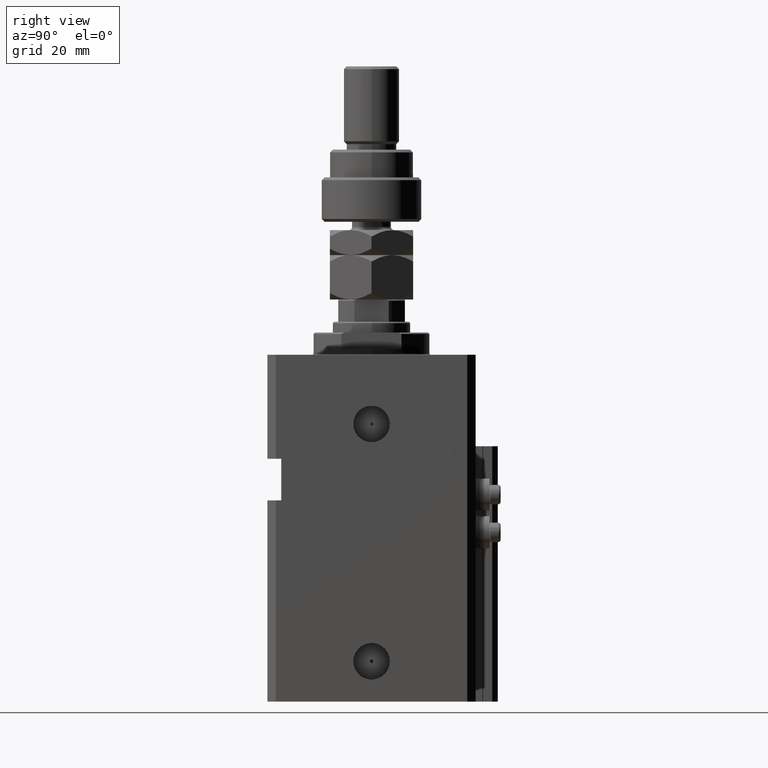
[diagram: clean part render]
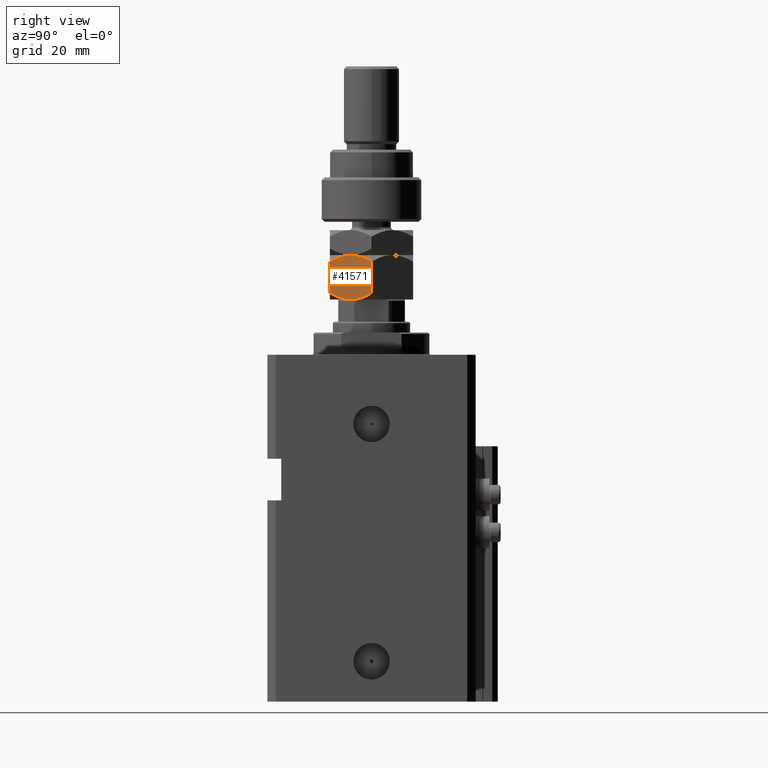
[diagram: same view with one face highlighted and labeled with its STEP entity id]
A machine part, right view. The second image highlights one B-rep face of the part: STEP entity #41571.
In plain terms, the highlighted planar face has unit normal (-0.866, 0.5, 0).
Its self-contained STEP definition (entity closure, byte-faithful):
#1382 = DIRECTION ( 'NONE',  ( -0.000000000000000000, -0.000000000000000000, -1.000000000000000000 ) ) ;
#2377 = CARTESIAN_POINT ( 'NONE',  ( 14.99999999999999645, 0.000000000000000000, 16.00000000000000000 ) ) ;
#2874 = CARTESIAN_POINT ( 'NONE',  ( 15.00000000000000000, 3.735400403320773055, 15.55737490054933403 ) ) ;
#3380 = CARTESIAN_POINT ( 'NONE',  ( 15.00000000000000178, -1.516896874073660584, 0.07181722323989220280 ) ) ;
#3632 = CARTESIAN_POINT ( 'NONE',  ( 15.00000000000000000, -0.7629267201675461463, 0.01468466084192619932 ) ) ;
#4727 = CARTESIAN_POINT ( 'NONE',  ( 15.00000000000000178, -5.891877557735398341, 14.89726549906047737 ) ) ;
#5242 = CARTESIAN_POINT ( 'NONE',  ( 15.00000000000000533, -1.527574731641585526, 16.00000000000001066 ) ) ;
#5587 = VERTEX_POINT ( 'NONE', #10029 ) ;
#5843 = EDGE_LOOP ( 'NONE', ( #10372, #18734, #17733, #15258, #15086, #16191 ) ) ;
#6780 = EDGE_CURVE ( 'NONE', #8073, #5587, #19856, .T. ) ;
#7012 = CARTESIAN_POINT ( 'NONE',  ( 15.00000000000000355, 0.7629267201675408172, 15.98531533915807934 ) ) ;
#7777 = CARTESIAN_POINT ( 'NONE',  ( 15.00000000000000000, 0.000000000000000000, 0.000000000000000000 ) ) ;
#8073 = VERTEX_POINT ( 'NONE', #29614 ) ;
#8439 = VERTEX_POINT ( 'NONE', #47627 ) ;
#8862 = CARTESIAN_POINT ( 'NONE',  ( 14.99999999999999645, 0.000000000000000000, 16.00000000000000000 ) ) ;
#8933 = CARTESIAN_POINT ( 'NONE',  ( 15.00000000000000000, 0.000000000000000000, 0.000000000000000000 ) ) ;
#10029 = CARTESIAN_POINT ( 'NONE',  ( 15.00000000000000000, -8.660254037844389075, 2.320508075688767047 ) ) ;
#10145 = CARTESIAN_POINT ( 'NONE',  ( 15.00000000000000000, 1.516896874073655477, 15.92818277676011007 ) ) ;
#10372 = ORIENTED_EDGE ( 'NONE', *, *, #28794, .F. ) ;
#10391 = CARTESIAN_POINT ( 'NONE',  ( 15.00000000000000000, 1.890862710942010638, 15.88574619416683831 ) ) ;
#10980 = EDGE_CURVE ( 'NONE', #23603, #8439, #40371, .T. ) ;
#11397 = CARTESIAN_POINT ( 'NONE',  ( 15.00000000000000000, 8.660254037844389075, 13.67949192431123784 ) ) ;
#11645 = CARTESIAN_POINT ( 'NONE',  ( 15.00000000000000178, -1.890862710942016411, 0.1142538058331598050 ) ) ;
#12483 = CARTESIAN_POINT ( 'NONE',  ( 15.00000000000000178, -7.987590979791838741, 14.01582345333751967 ) ) ;
#13320 = CARTESIAN_POINT ( 'NONE',  ( 15.00000000000000000, 7.987590979791842294, 1.984176546662486773 ) ) ;
#14258 = CARTESIAN_POINT ( 'NONE',  ( 15.00000000000000000, 3.004330627448758673, 15.71971113554880972 ) ) ;
#15086 = ORIENTED_EDGE ( 'NONE', *, *, #31621, .T. ) ;
#15203 = EDGE_CURVE ( 'NONE', #41717, #49380, #29106, .T. ) ;
#15258 = ORIENTED_EDGE ( 'NONE', *, *, #15203, .F. ) ;
#16191 = ORIENTED_EDGE ( 'NONE', *, *, #6780, .F. ) ;
#17395 = CARTESIAN_POINT ( 'NONE',  ( 15.00000000000000000, 8.660254037844389075, 16.00000000000000000 ) ) ;
#17733 = ORIENTED_EDGE ( 'NONE', *, *, #48934, .F. ) ;
#18370 = CARTESIAN_POINT ( 'NONE',  ( 15.00000000000000178, 5.890999289811421846, 14.89758491968458465 ) ) ;
#18734 = ORIENTED_EDGE ( 'NONE', *, *, #10980, .F. ) ;
#19403 = CARTESIAN_POINT ( 'NONE',  ( 15.00000000000000000, -8.660254037844389075, 16.00000000000000000 ) ) ;
#19856 = B_SPLINE_CURVE_WITH_KNOTS ( 'NONE', 3,
 ( #7777, #50335, #3632, #3380, #11645, #39499, #46978, #38467, #35097, #27367, #34594, #23760 ),
 .UNSPECIFIED., .F., .F.,
 ( 4, 2, 2, 2, 2, 4 ),
 ( 0.03291042869972461704, 0.03403908204310902852, 0.03516773538649344694, 0.03742504207326226989, 0.03968234876003109979, 0.04193965544679992274 ),
 .UNSPECIFIED. ) ;
#20439 = DIRECTION ( 'NONE',  ( 0.000000000000000000, 0.000000000000000000, 1.000000000000000000 ) ) ;
#21354 = B_SPLINE_CURVE_WITH_KNOTS ( 'NONE', 3,
 ( #2377, #42103, #7012, #10145, #10391, #14258, #2874, #30224, #18370, #22994, #50088, #49335 ),
 .UNSPECIFIED., .F., .F.,
 ( 4, 2, 2, 2, 2, 4 ),
 ( 0.03291042869972460316, 0.03403908204310901464, 0.03516773538649342612, 0.03742504207326225601, 0.03968234876003107897, 0.04193965544679990887 ),
 .UNSPECIFIED. ) ;
#22994 = CARTESIAN_POINT ( 'NONE',  ( 14.99999999999999645, 7.300329060372325429, 14.33030584635916860 ) ) ;
#23273 = PLANE ( 'NONE',  #25706 ) ;
#23603 = VERTEX_POINT ( 'NONE', #11397 ) ;
#23760 = CARTESIAN_POINT ( 'NONE',  ( 15.00000000000000000, -8.660254037844389075, 2.320508075688767047 ) ) ;
#24082 = CARTESIAN_POINT ( 'NONE',  ( 15.00000000000000000, -8.660254037844389075, 13.67949192431123961 ) ) ;
#24411 = CARTESIAN_POINT ( 'NONE',  ( 15.00000000000000000, 5.176035048062463950, 0.8528038385778482500 ) ) ;
#25706 = AXIS2_PLACEMENT_3D ( 'NONE', #19403, #31267, #20439 ) ;
#27367 = CARTESIAN_POINT ( 'NONE',  ( 15.00000000000000533, -7.300329060372333423, 1.669694153640836065 ) ) ;
#28173 = FACE_OUTER_BOUND ( 'NONE', #5843, .T. ) ;
#28528 = CARTESIAN_POINT ( 'NONE',  ( 15.00000000000000178, 1.527574731641579753, -2.310705880109730931E-15 ) ) ;
#28794 = EDGE_CURVE ( 'NONE', #8439, #8073, #31401, .T. ) ;
#28929 = LINE ( 'NONE', #44420, #41906 ) ;
#29106 = B_SPLINE_CURVE_WITH_KNOTS ( 'NONE', 3,
 ( #24082, #12483, #48057, #4727, #32322, #43943, #5242, #8862 ),
 .UNSPECIFIED., .F., .F.,
 ( 4, 2, 2, 4 ),
 ( 0.02387628527307377943, 0.02613482112973648450, 0.02839335698639919303, 0.03291042869972460316 ),
 .UNSPECIFIED. ) ;
#29192 = CARTESIAN_POINT ( 'NONE',  ( 15.00000000000000000, -8.660254037844389075, 13.67949192431123961 ) ) ;
#29614 = CARTESIAN_POINT ( 'NONE',  ( 15.00000000000000000, 0.000000000000000000, 0.000000000000000000 ) ) ;
#30224 = CARTESIAN_POINT ( 'NONE',  ( 15.00000000000000000, 5.178726290334375371, 15.14627300035555990 ) ) ;
#30890 = CARTESIAN_POINT ( 'NONE',  ( 14.99999999999999645, 0.000000000000000000, 16.00000000000000000 ) ) ;
#30937 = VECTOR ( 'NONE', #1382, 1000.000000000000000 ) ;
#31267 = DIRECTION ( 'NONE',  ( -1.000000000000000000, 0.000000000000000000, 0.000000000000000000 ) ) ;
#31401 = B_SPLINE_CURVE_WITH_KNOTS ( 'NONE', 3,
 ( #48131, #13320, #44786, #45033, #24411, #41160, #28528, #8933 ),
 .UNSPECIFIED., .F., .F.,
 ( 4, 2, 2, 4 ),
 ( 0.02387628527307377596, 0.02613482112973648797, 0.02839335698639919650, 0.03291042869972461704 ),
 .UNSPECIFIED. ) ;
#31621 = EDGE_CURVE ( 'NONE', #41717, #5587, #28929, .T. ) ;
#32322 = CARTESIAN_POINT ( 'NONE',  ( 15.00000000000000355, -5.176035048062459509, 15.14719616142216196 ) ) ;
#34594 = CARTESIAN_POINT ( 'NONE',  ( 15.00000000000000178, -7.987879721624093321, 1.984320917578617616 ) ) ;
#35097 = CARTESIAN_POINT ( 'NONE',  ( 15.00000000000000000, -5.890999289811427175, 1.102415080315421125 ) ) ;
#37424 = DIRECTION ( 'NONE',  ( -0.000000000000000000, -0.000000000000000000, -1.000000000000000000 ) ) ;
#38467 = CARTESIAN_POINT ( 'NONE',  ( 14.99999999999999822, -5.178726290334377147, 0.8537269996444445397 ) ) ;
#39499 = CARTESIAN_POINT ( 'NONE',  ( 15.00000000000000178, -3.004330627448764002, 0.2802888644511988825 ) ) ;
#40371 = LINE ( 'NONE', #17395, #30937 ) ;
#41160 = CARTESIAN_POINT ( 'NONE',  ( 15.00000000000000000, 3.008020699068711501, 0.2357602839062953870 ) ) ;
#41571 = ADVANCED_FACE ( 'NONE', ( #28173 ), #23273, .F. ) ;
#41717 = VERTEX_POINT ( 'NONE', #29192 ) ;
#41906 = VECTOR ( 'NONE', #37424, 1000.000000000000000 ) ;
#42103 = CARTESIAN_POINT ( 'NONE',  ( 15.00000000000000178, 0.3816858437404682114, 16.00000000000001066 ) ) ;
#43943 = CARTESIAN_POINT ( 'NONE',  ( 15.00000000000000533, -3.008020699068709725, 15.76423971609371222 ) ) ;
#44420 = CARTESIAN_POINT ( 'NONE',  ( 15.00000000000000000, -8.660254037844389075, 16.00000000000000000 ) ) ;
#44786 = CARTESIAN_POINT ( 'NONE',  ( 15.00000000000000178, 7.301344312447433538, 1.670136952686098741 ) ) ;
#45033 = CARTESIAN_POINT ( 'NONE',  ( 14.99999999999999822, 5.891877557735396564, 1.102734500939527296 ) ) ;
#46978 = CARTESIAN_POINT ( 'NONE',  ( 14.99999999999999822, -3.735400403320778384, 0.4426250994506710779 ) ) ;
#47627 = CARTESIAN_POINT ( 'NONE',  ( 15.00000000000000000, 8.660254037844389075, 2.320508075688765715 ) ) ;
#48057 = CARTESIAN_POINT ( 'NONE',  ( 15.00000000000000000, -7.301344312447432650, 14.32986304731390881 ) ) ;
#48131 = CARTESIAN_POINT ( 'NONE',  ( 15.00000000000000000, 8.660254037844389075, 2.320508075688765715 ) ) ;
#48934 = EDGE_CURVE ( 'NONE', #49380, #23603, #21354, .T. ) ;
#49335 = CARTESIAN_POINT ( 'NONE',  ( 15.00000000000000000, 8.660254037844389075, 13.67949192431123784 ) ) ;
#49380 = VERTEX_POINT ( 'NONE', #30890 ) ;
#50088 = CARTESIAN_POINT ( 'NONE',  ( 15.00000000000000533, 7.987879721624093321, 14.01567908242138927 ) ) ;
#50335 = CARTESIAN_POINT ( 'NONE',  ( 15.00000000000000178, -0.3816858437404750393, -1.673737103774498062E-15 ) ) ;